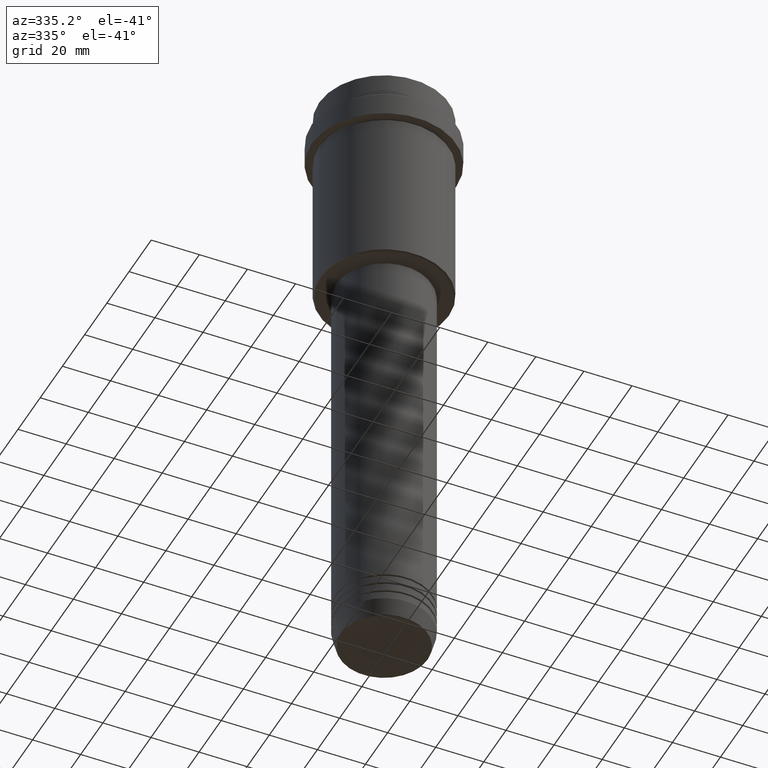
[diagram: clean part render]
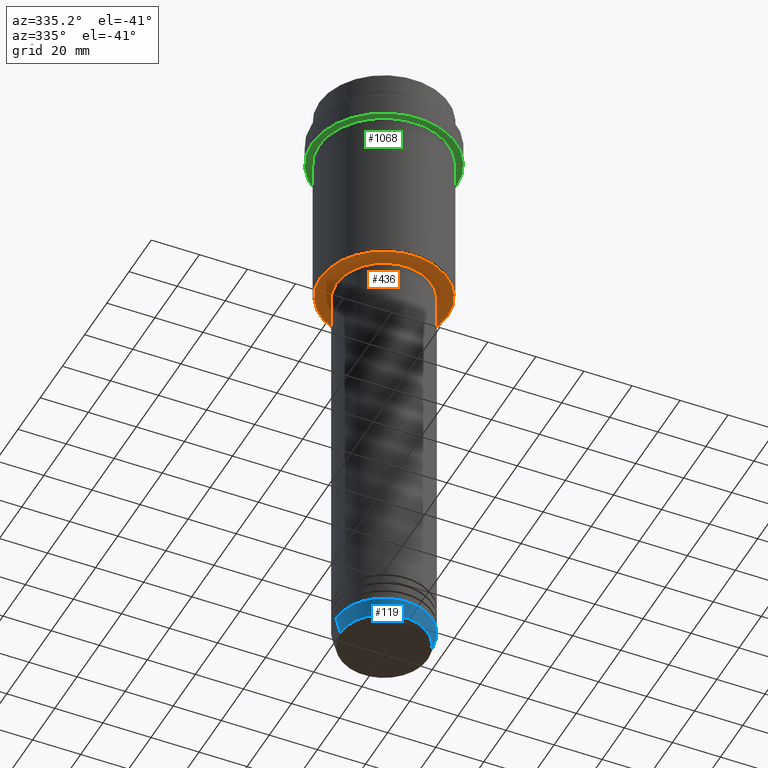
[diagram: same view with three faces highlighted in distinct colors, each labeled with its STEP entity id]
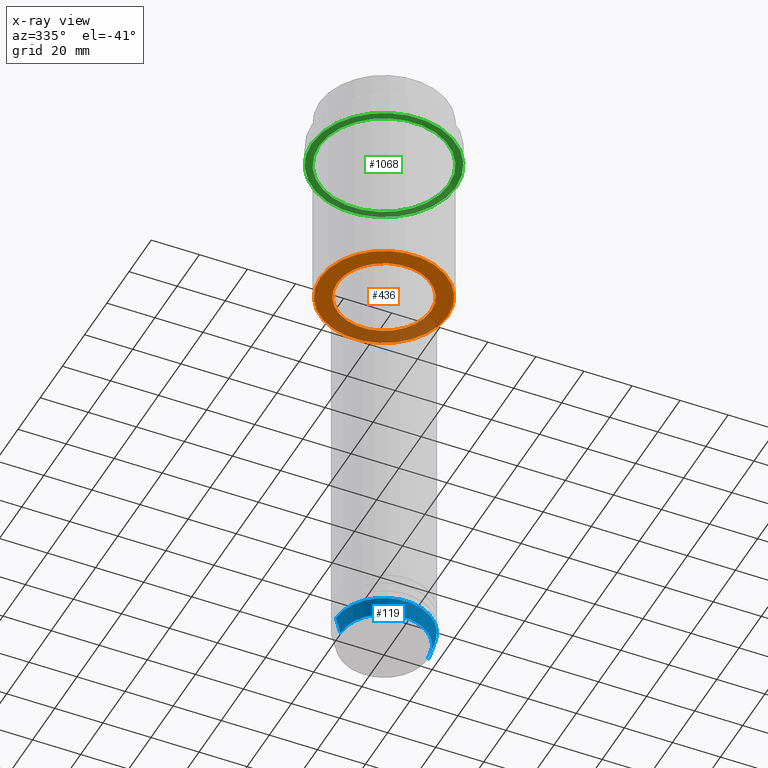
[diagram: x-ray of the same camera — body ghosted, the three highlighted faces saturated]
A machine part, auxiliary view with three faces highlighted in distinct colors.
The next image is the same camera in x-ray (body ghosted, the three faces saturated) — at least one of them is partly hidden behind the body in this view.
Their STEP definitions:

[orange] entity #436 — the highlighted planar face has unit normal (0, 0, -1).
#33 = AXIS2_PLACEMENT_3D ( 'NONE', #1412, #344, #878 ) ;
#36 = AXIS2_PLACEMENT_3D ( 'NONE', #1360, #485, #915 ) ;
#160 = CARTESIAN_POINT ( 'NONE',  ( 0.000000000000000000, 27.00000000000000000, -88.00000000000002842 ) ) ;
#171 = DIRECTION ( 'NONE',  ( -1.000000000000000000, 0.000000000000000000, -0.000000000000000000 ) ) ;
#221 = ORIENTED_EDGE ( 'NONE', *, *, #898, .T. ) ;
#267 = CIRCLE ( 'NONE', #36, 19.50000000000000000 ) ;
#286 = CIRCLE ( 'NONE', #33, 19.50000000000000000 ) ;
#304 = EDGE_CURVE ( 'NONE', #514, #864, #286, .T. ) ;
#344 = DIRECTION ( 'NONE',  ( -0.000000000000000000, -0.000000000000000000, 1.000000000000000000 ) ) ;
#436 = ADVANCED_FACE ( 'NONE', ( #1036, #1263 ), #596, .T. ) ;
#440 = VERTEX_POINT ( 'NONE', #1258 ) ;
#463 = VERTEX_POINT ( 'NONE', #1017 ) ;
#485 = DIRECTION ( 'NONE',  ( -0.000000000000000000, -0.000000000000000000, 1.000000000000000000 ) ) ;
#514 = VERTEX_POINT ( 'NONE', #709 ) ;
#596 = PLANE ( 'NONE',  #1355 ) ;
#615 = EDGE_LOOP ( 'NONE', ( #221, #764 ) ) ;
#619 = DIRECTION ( 'NONE',  ( 0.000000000000000000, 0.000000000000000000, -1.000000000000000000 ) ) ;
#622 = EDGE_CURVE ( 'NONE', #463, #440, #879, .T. ) ;
#658 = CIRCLE ( 'NONE', #990, 26.49999999999999645 ) ;
#666 = EDGE_CURVE ( 'NONE', #440, #463, #658, .T. ) ;
#709 = CARTESIAN_POINT ( 'NONE',  ( -19.50000000000000000, 2.388061258337338939E-15, -88.00000000000002842 ) ) ;
#711 = EDGE_LOOP ( 'NONE', ( #859, #1400 ) ) ;
#757 = CARTESIAN_POINT ( 'NONE',  ( 0.000000000000000000, 0.000000000000000000, -88.00000000000002842 ) ) ;
#764 = ORIENTED_EDGE ( 'NONE', *, *, #304, .T. ) ;
#801 = DIRECTION ( 'NONE',  ( 0.000000000000000000, 0.000000000000000000, -1.000000000000000000 ) ) ;
#859 = ORIENTED_EDGE ( 'NONE', *, *, #622, .T. ) ;
#864 = VERTEX_POINT ( 'NONE', #890 ) ;
#878 = DIRECTION ( 'NONE',  ( 1.000000000000000000, 0.000000000000000000, 0.000000000000000000 ) ) ;
#879 = CIRCLE ( 'NONE', #922, 26.49999999999999645 ) ;
#890 = CARTESIAN_POINT ( 'NONE',  ( 19.50000000000000000, 0.000000000000000000, -88.00000000000002842 ) ) ;
#898 = EDGE_CURVE ( 'NONE', #864, #514, #267, .T. ) ;
#915 = DIRECTION ( 'NONE',  ( 1.000000000000000000, 0.000000000000000000, 0.000000000000000000 ) ) ;
#922 = AXIS2_PLACEMENT_3D ( 'NONE', #1178, #619, #1074 ) ;
#953 = DIRECTION ( 'NONE',  ( -1.000000000000000000, 0.000000000000000000, 0.000000000000000000 ) ) ;
#990 = AXIS2_PLACEMENT_3D ( 'NONE', #757, #1194, #953 ) ;
#1017 = CARTESIAN_POINT ( 'NONE',  ( 26.49999999999999645, 0.000000000000000000, -88.00000000000002842 ) ) ;
#1036 = FACE_OUTER_BOUND ( 'NONE', #711, .T. ) ;
#1074 = DIRECTION ( 'NONE',  ( -1.000000000000000000, 0.000000000000000000, 0.000000000000000000 ) ) ;
#1178 = CARTESIAN_POINT ( 'NONE',  ( 0.000000000000000000, 0.000000000000000000, -88.00000000000002842 ) ) ;
#1194 = DIRECTION ( 'NONE',  ( 0.000000000000000000, 0.000000000000000000, -1.000000000000000000 ) ) ;
#1258 = CARTESIAN_POINT ( 'NONE',  ( -26.49999999999999645, 3.275930187719169552E-15, -88.00000000000002842 ) ) ;
#1263 = FACE_BOUND ( 'NONE', #615, .T. ) ;
#1355 = AXIS2_PLACEMENT_3D ( 'NONE', #160, #801, #171 ) ;
#1360 = CARTESIAN_POINT ( 'NONE',  ( 0.000000000000000000, 0.000000000000000000, -88.00000000000002842 ) ) ;
#1400 = ORIENTED_EDGE ( 'NONE', *, *, #666, .T. ) ;
#1412 = CARTESIAN_POINT ( 'NONE',  ( 0.000000000000000000, 0.000000000000000000, -88.00000000000002842 ) ) ;

[blue] entity #119 — the highlighted conical surface has half-angle 15 deg.
#106 = DIRECTION ( 'NONE',  ( -0.2588190451025213501, 3.169619151431772337E-17, 0.9659258262890680902 ) ) ;
#119 = ADVANCED_FACE ( 'NONE', ( #1136 ), #310, .T. ) ;
#161 = CARTESIAN_POINT ( 'NONE',  ( 0.000000000000000000, 0.000000000000000000, -256.0000000000000000 ) ) ;
#211 = CARTESIAN_POINT ( 'NONE',  ( -20.00000000000000000, 2.449293598294706513E-15, -256.0000000000000000 ) ) ;
#224 = AXIS2_PLACEMENT_3D ( 'NONE', #1323, #1307, #231 ) ;
#225 = AXIS2_PLACEMENT_3D ( 'NONE', #492, #1006, #921 ) ;
#231 = DIRECTION ( 'NONE',  ( 1.000000000000000000, 0.000000000000000000, 0.000000000000000000 ) ) ;
#233 = ORIENTED_EDGE ( 'NONE', *, *, #1375, .F. ) ;
#261 = VERTEX_POINT ( 'NONE', #1190 ) ;
#310 = CONICAL_SURFACE ( 'NONE', #1103, 20.00000000000000000, 0.2617993877991500740 ) ;
#377 = EDGE_CURVE ( 'NONE', #734, #458, #758, .T. ) ;
#383 = VECTOR ( 'NONE', #1269, 1000.000000000000000 ) ;
#407 = EDGE_LOOP ( 'NONE', ( #603, #468, #1311, #233 ) ) ;
#458 = VERTEX_POINT ( 'NONE', #930 ) ;
#468 = ORIENTED_EDGE ( 'NONE', *, *, #818, .T. ) ;
#492 = CARTESIAN_POINT ( 'NONE',  ( 0.000000000000000000, 0.000000000000000000, -256.0000000000000000 ) ) ;
#558 = CARTESIAN_POINT ( 'NONE',  ( 18.22365507213718772, 0.000000000000000000, -262.6294095225512706 ) ) ;
#603 = ORIENTED_EDGE ( 'NONE', *, *, #377, .F. ) ;
#693 = EDGE_CURVE ( 'NONE', #1233, #261, #937, .T. ) ;
#734 = VERTEX_POINT ( 'NONE', #1101 ) ;
#758 = LINE ( 'NONE', #211, #1381 ) ;
#818 = EDGE_CURVE ( 'NONE', #734, #1233, #1358, .T. ) ;
#921 = DIRECTION ( 'NONE',  ( 1.000000000000000000, 0.000000000000000000, 0.000000000000000000 ) ) ;
#930 = CARTESIAN_POINT ( 'NONE',  ( -20.00000000000000000, 2.449293598294706513E-15, -256.0000000000000000 ) ) ;
#937 = LINE ( 'NONE', #1395, #383 ) ;
#1006 = DIRECTION ( 'NONE',  ( -0.000000000000000000, -0.000000000000000000, 1.000000000000000000 ) ) ;
#1101 = CARTESIAN_POINT ( 'NONE',  ( -18.22365507213718772, 2.340523841790264718E-15, -262.6294095225512706 ) ) ;
#1103 = AXIS2_PLACEMENT_3D ( 'NONE', #161, #1356, #1218 ) ;
#1136 = FACE_OUTER_BOUND ( 'NONE', #407, .T. ) ;
#1156 = CIRCLE ( 'NONE', #225, 20.00000000000000000 ) ;
#1190 = CARTESIAN_POINT ( 'NONE',  ( 20.00000000000000000, 0.000000000000000000, -256.0000000000000000 ) ) ;
#1218 = DIRECTION ( 'NONE',  ( 1.000000000000000000, 0.000000000000000000, 0.000000000000000000 ) ) ;
#1233 = VERTEX_POINT ( 'NONE', #558 ) ;
#1269 = DIRECTION ( 'NONE',  ( 0.2588190451025213501, 0.000000000000000000, 0.9659258262890680902 ) ) ;
#1307 = DIRECTION ( 'NONE',  ( -0.000000000000000000, -0.000000000000000000, 1.000000000000000000 ) ) ;
#1311 = ORIENTED_EDGE ( 'NONE', *, *, #693, .T. ) ;
#1323 = CARTESIAN_POINT ( 'NONE',  ( 0.000000000000000000, 0.000000000000000000, -262.6294095225512706 ) ) ;
#1356 = DIRECTION ( 'NONE',  ( -0.000000000000000000, -0.000000000000000000, 1.000000000000000000 ) ) ;
#1358 = CIRCLE ( 'NONE', #224, 18.22365507213718772 ) ;
#1375 = EDGE_CURVE ( 'NONE', #458, #261, #1156, .T. ) ;
#1381 = VECTOR ( 'NONE', #106, 1000.000000000000000 ) ;
#1395 = CARTESIAN_POINT ( 'NONE',  ( 20.00000000000000000, 0.000000000000000000, -256.0000000000000000 ) ) ;

[green] entity #1068 — the highlighted planar face has unit normal (0, 0, -1).
#21 = EDGE_CURVE ( 'NONE', #345, #1372, #876, .T. ) ;
#27 = CARTESIAN_POINT ( 'NONE',  ( 0.000000000000000000, 0.000000000000000000, -22.00000000000000000 ) ) ;
#35 = DIRECTION ( 'NONE',  ( -0.000000000000000000, -0.000000000000000000, 1.000000000000000000 ) ) ;
#44 = DIRECTION ( 'NONE',  ( -1.000000000000000000, 0.000000000000000000, 0.000000000000000000 ) ) ;
#52 = ORIENTED_EDGE ( 'NONE', *, *, #21, .T. ) ;
#70 = CARTESIAN_POINT ( 'NONE',  ( 0.000000000000000000, 0.000000000000000000, -22.00000000000000000 ) ) ;
#78 = DIRECTION ( 'NONE',  ( 0.000000000000000000, 0.000000000000000000, -1.000000000000000000 ) ) ;
#96 = ORIENTED_EDGE ( 'NONE', *, *, #460, .F. ) ;
#177 = FACE_OUTER_BOUND ( 'NONE', #1322, .T. ) ;
#196 = EDGE_LOOP ( 'NONE', ( #661, #52 ) ) ;
#213 = DIRECTION ( 'NONE',  ( 1.000000000000000000, 0.000000000000000000, 0.000000000000000000 ) ) ;
#242 = AXIS2_PLACEMENT_3D ( 'NONE', #721, #1028, #916 ) ;
#316 = CARTESIAN_POINT ( 'NONE',  ( 0.000000000000000000, 0.000000000000000000, -22.00000000000000355 ) ) ;
#345 = VERTEX_POINT ( 'NONE', #978 ) ;
#386 = CIRCLE ( 'NONE', #1181, 29.99999999999999645 ) ;
#387 = VERTEX_POINT ( 'NONE', #649 ) ;
#460 = EDGE_CURVE ( 'NONE', #941, #387, #1292, .T. ) ;
#630 = DIRECTION ( 'NONE',  ( -1.000000000000000000, 0.000000000000000000, -0.000000000000000000 ) ) ;
#639 = DIRECTION ( 'NONE',  ( -0.000000000000000000, -0.000000000000000000, 1.000000000000000000 ) ) ;
#649 = CARTESIAN_POINT ( 'NONE',  ( 29.99999999999999645, 0.000000000000000000, -22.00000000000000355 ) ) ;
#661 = ORIENTED_EDGE ( 'NONE', *, *, #1085, .T. ) ;
#721 = CARTESIAN_POINT ( 'NONE',  ( 0.000000000000000000, 0.000000000000000000, -22.00000000000000355 ) ) ;
#724 = AXIS2_PLACEMENT_3D ( 'NONE', #70, #639, #840 ) ;
#735 = FACE_BOUND ( 'NONE', #196, .T. ) ;
#752 = DIRECTION ( 'NONE',  ( -0.000000000000000000, -0.000000000000000000, 1.000000000000000000 ) ) ;
#820 = CARTESIAN_POINT ( 'NONE',  ( -29.99999999999999645, 3.673940397442058389E-15, -22.00000000000000355 ) ) ;
#840 = DIRECTION ( 'NONE',  ( -1.000000000000000000, 0.000000000000000000, 0.000000000000000000 ) ) ;
#876 = CIRCLE ( 'NONE', #1080, 26.99999999999999289 ) ;
#916 = DIRECTION ( 'NONE',  ( 1.000000000000000000, 0.000000000000000000, 0.000000000000000000 ) ) ;
#941 = VERTEX_POINT ( 'NONE', #820 ) ;
#978 = CARTESIAN_POINT ( 'NONE',  ( 26.99999999999999289, 3.306546357697852944E-15, -22.00000000000000000 ) ) ;
#1028 = DIRECTION ( 'NONE',  ( -0.000000000000000000, -0.000000000000000000, 1.000000000000000000 ) ) ;
#1041 = CARTESIAN_POINT ( 'NONE',  ( 0.000000000000000000, 29.99999999999999645, -22.00000000000000000 ) ) ;
#1047 = PLANE ( 'NONE',  #1107 ) ;
#1068 = ADVANCED_FACE ( 'NONE', ( #735, #177 ), #1047, .T. ) ;
#1080 = AXIS2_PLACEMENT_3D ( 'NONE', #27, #35, #44 ) ;
#1085 = EDGE_CURVE ( 'NONE', #1372, #345, #1296, .T. ) ;
#1107 = AXIS2_PLACEMENT_3D ( 'NONE', #1041, #78, #630 ) ;
#1124 = CARTESIAN_POINT ( 'NONE',  ( -26.99999999999999289, 0.000000000000000000, -22.00000000000000000 ) ) ;
#1157 = EDGE_CURVE ( 'NONE', #387, #941, #386, .T. ) ;
#1181 = AXIS2_PLACEMENT_3D ( 'NONE', #316, #752, #213 ) ;
#1248 = ORIENTED_EDGE ( 'NONE', *, *, #1157, .F. ) ;
#1292 = CIRCLE ( 'NONE', #242, 29.99999999999999645 ) ;
#1296 = CIRCLE ( 'NONE', #724, 26.99999999999999289 ) ;
#1322 = EDGE_LOOP ( 'NONE', ( #1248, #96 ) ) ;
#1372 = VERTEX_POINT ( 'NONE', #1124 ) ;